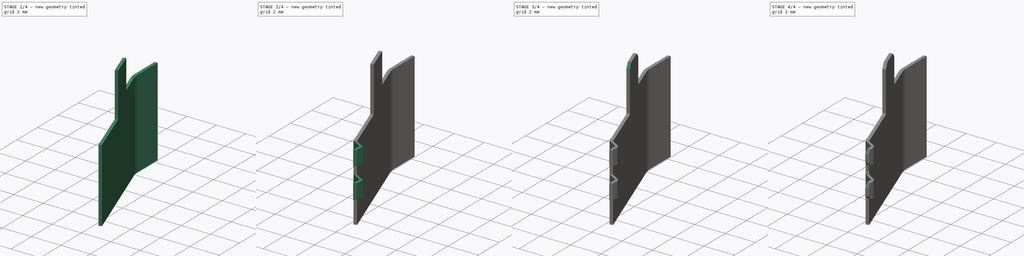
[diagram: build sequence overview — one tinted view per stage of 4, left to right]
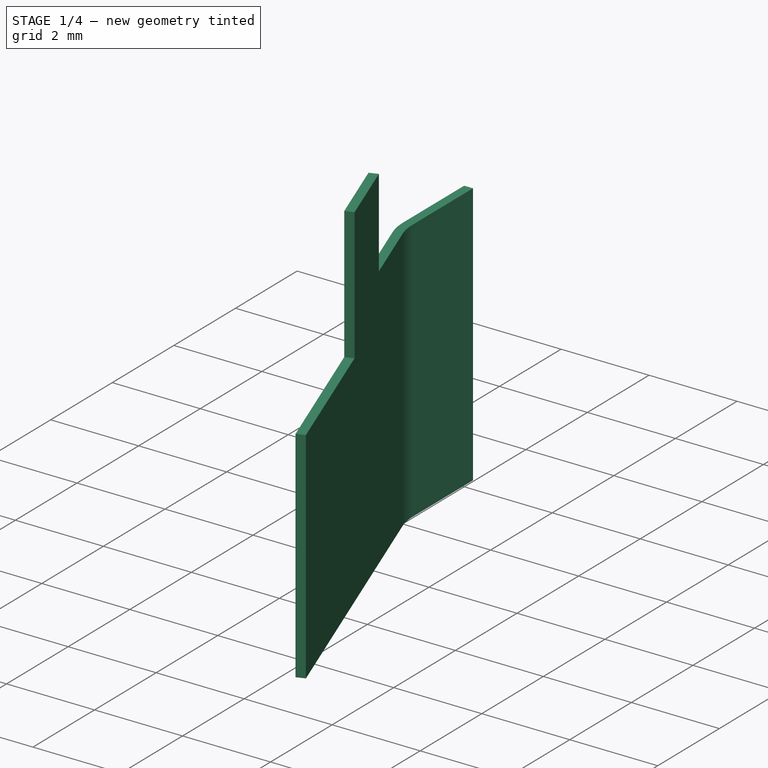
[diagram: stage 1 of 4 — iso view after this stage's code; geometry added in this stage tinted green]
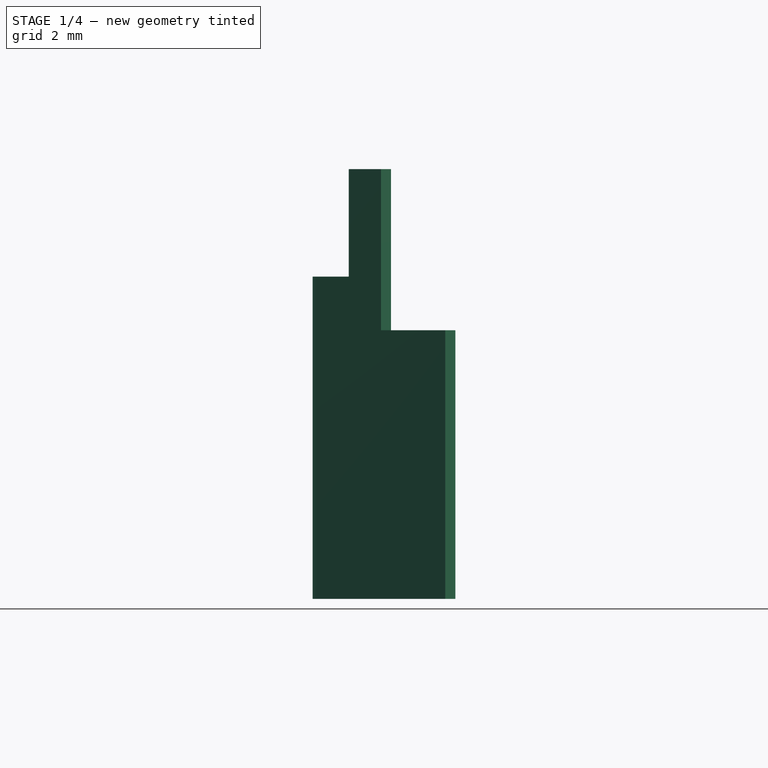
[diagram: stage 1 of 4 — front view after this stage's code; geometry added in this stage tinted green]
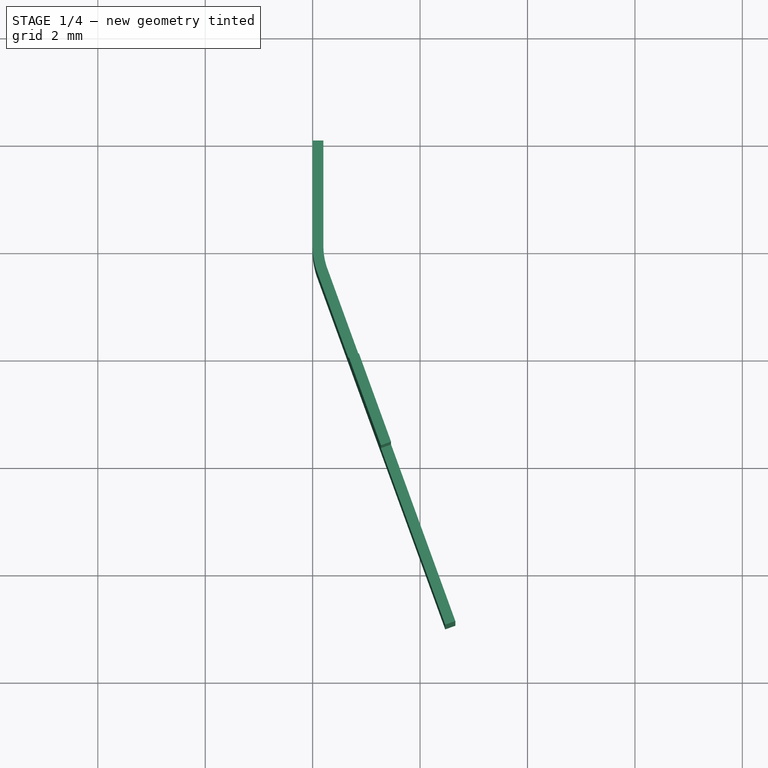
[diagram: stage 1 of 4 — top view after this stage's code; geometry added in this stage tinted green]
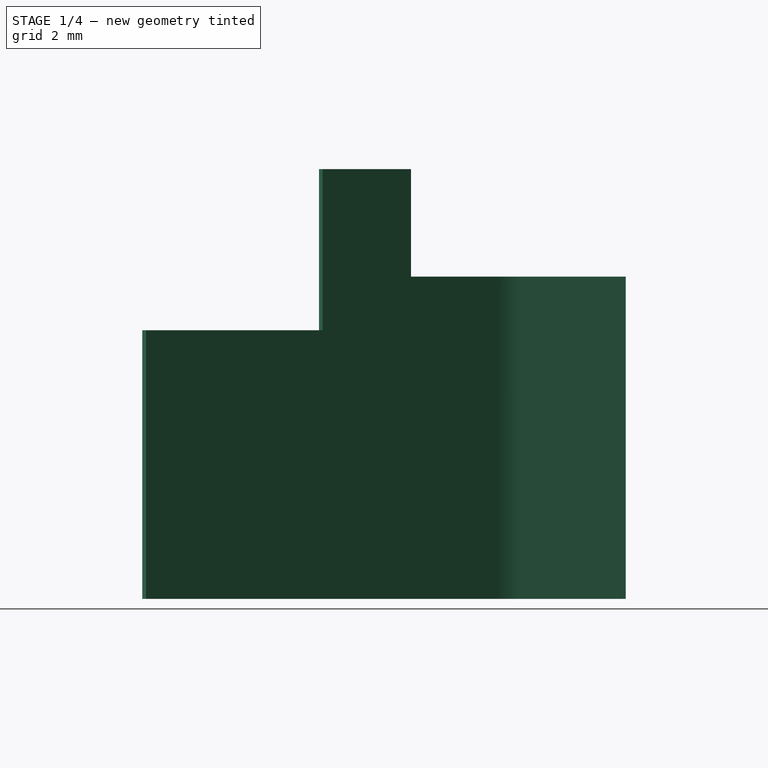
[diagram: stage 1 of 4 — right view after this stage's code; geometry added in this stage tinted green]
FCSTD DOCUMENT  (FreeCAD 0.19.4R1_voidlinux)
Label: battery_contact_minus
License: All rights reserved
LicenseURL: http://en.wikipedia.org/wiki/All_rights_reserved
objects: PartDesign::Fillet×5, Sketcher::SketchObject×4, PartDesign::Pad×4, PartDesign::Pocket×1, PartDesign::LinearPattern×1, PartDesign::Chamfer×1, PartDesign::Body×1, PartDesign::CoordinateSystem×1, App::Part×1
note: 29 computed .brp shape members not serialized (recipe doc carries the construction recipe); baked Part::Feature solids carry a one-line shape summary decoded from their .brp
EXTERNAL_REF file=master_animator.FCStd obj=Variables

FEATURE [Sketcher::SketchObject] Sketch
  FullyConstrained = true
  MapMode = 5
  Support = -> [XY_Plane001]
  sketch-geometry (8):
    g0: LineSegment StartX=0 StartY=0 StartZ=0 EndX=0.2 EndY=0 EndZ=0
    g1: LineSegment StartX=0 StartY=0 StartZ=0 EndX=4.15e-14 EndY=-2 EndZ=0
    g2: LineSegment StartX=0.2 StartY=0 StartZ=0 EndX=0.2 EndY=-2 EndZ=0
    g3: LineSegment StartX=0.0744367 StartY=-2.42215 StartZ=0 EndX=2.46858 EndY=-9 EndZ=0
    g4: LineSegment StartX=0.262375 StartY=-2.35375 StartZ=0 EndX=2.65652 EndY=-8.9316 EndZ=0
    g5: LineSegment StartX=2.46858 StartY=-9 StartZ=0 EndX=2.65652 EndY=-8.9316 EndZ=0
    g6: ArcOfCircle CenterX=1.44942 CenterY=-1.96207 CenterZ=0 NormalX=0 NormalY=0 NormalZ=1 AngleXU=0 Radius=1.44992 StartAngle=3.16776 EndAngle=3.46449
    g7: ArcOfCircle CenterX=1.44942 CenterY=-1.96207 CenterZ=0 NormalX=0 NormalY=0 NormalZ=1 AngleXU=0 Radius=1.25 StartAngle=3.17194 EndAngle=3.46031
  constraints (24):
    c: Coincident(g0,g-1)
    c: PointOnObject(g0,g-1)
    c: Distance(g0) = 0.2
    c: Coincident(g1,g0)
    c: Coincident(g2,g0)
    c: Vertical(g2)
    c: PointOnObject(g1,g-2)
    c: Distance(g1) = 2
    c: Coincident(g5,g3)
    c: Coincident(g5,g4)
    c: Angle(g3,g2) = 2.79253
    c: Perpendicular(g4,g5)
    c: Distance(g5) = 0.2
    c: Distance(g3) = 7
    c: Equal(g4,g3)
    c: Equal(g2,g1)
    c: Parallel(g3,g4)
    c: Coincident(g6,g1)
    c: Coincident(g6,g3)
    c: Coincident(g7,g2)
    c: Coincident(g7,g4)
    c: Coincident(g7,g6)
    c: DistanceY(g3,g1) = 7
    c: Radius(g7) = 1.25
FEATURE [PartDesign::Pad] Pad
  Direction = (1,1,1)
  Length = 6
  Length2 = 100
  Profile = -> Sketch
  Type = 0
FEATURE [Sketcher::SketchObject] Sketch001
  ExternalGeometry = -> [Pad]
  FullyConstrained = true
  MapMode = 5
  Placement = pos=(-0.524797,-0.19101,0) rot=(0.443713,0.633687,0.633687;2.30637rad)
  Support = -> [Pad]
  sketch-geometry (4):
    g0: LineSegment StartX=-9.30154 StartY=6 StartZ=0 EndX=-5.80154 EndY=6 EndZ=0
    g1: LineSegment StartX=-5.80154 StartY=6 StartZ=0 EndX=-5.80154 EndY=5 EndZ=0
    g2: LineSegment StartX=-5.80154 StartY=5 StartZ=0 EndX=-9.30154 EndY=5 EndZ=0
    g3: LineSegment StartX=-9.30154 StartY=5 StartZ=0 EndX=-9.30154 EndY=6 EndZ=0
  constraints (10):
    c: Coincident(g0,g1)
    c: Coincident(g1,g2)
    c: Coincident(g2,g3)
    c: Coincident(g3,g0)
    c: Horizontal(g2)
    c: Vertical(g1)
    c: Vertical(g3)
    c: Coincident(g0,g-4)
    c: Distance(g3) = 1
    c: Symmetric(g-4,g0,g0)
FEATURE [PartDesign::Pocket] Pocket
  BaseFeature = -> Pad
  Length = 5
  Length2 = 100
  Profile = -> Sketch001
  Type = 1
FEATURE [Sketcher::SketchObject] Sketch002
  ExternalGeometry = -> [Pocket]
  FullyConstrained = true
  MapMode = 5
  Placement = pos=(0,0,6) rot=(0,0,1;0rad)
  Support = -> [Pocket]
  sketch-geometry (4):
    g0: LineSegment StartX=1.27151 StartY=-5.71108 StartZ=0 EndX=1.45945 EndY=-5.64267 EndZ=0
    g1: LineSegment StartX=1.45945 StartY=-5.64267 StartZ=0 EndX=0.860911 EndY=-3.99821 EndZ=0
    g2: LineSegment StartX=1.27151 StartY=-5.71108 StartZ=0 EndX=0.672972 EndY=-4.06661 EndZ=0
    g3: LineSegment StartX=0.672972 StartY=-4.06661 StartZ=0 EndX=0.860911 EndY=-3.99821 EndZ=0
  constraints (9):
    c: Coincident(g0,g-5)
    c: Coincident(g0,g-4)
    c: Coincident(g1,g0)
    c: Coincident(g2,g-5)
    c: PointOnObject(g2,g-5)
    c: Equal(g1,g2)
    c: Symmetric(g-4,g0,g1)
    c: Coincident(g3,g2)
    c: Coincident(g3,g1)
FEATURE [PartDesign::Pad] Pad001
  BaseFeature = -> Pocket
  Direction = (1,1,1)
  Length = 2
  Length2 = 100
  Profile = -> Sketch002
  Type = 0
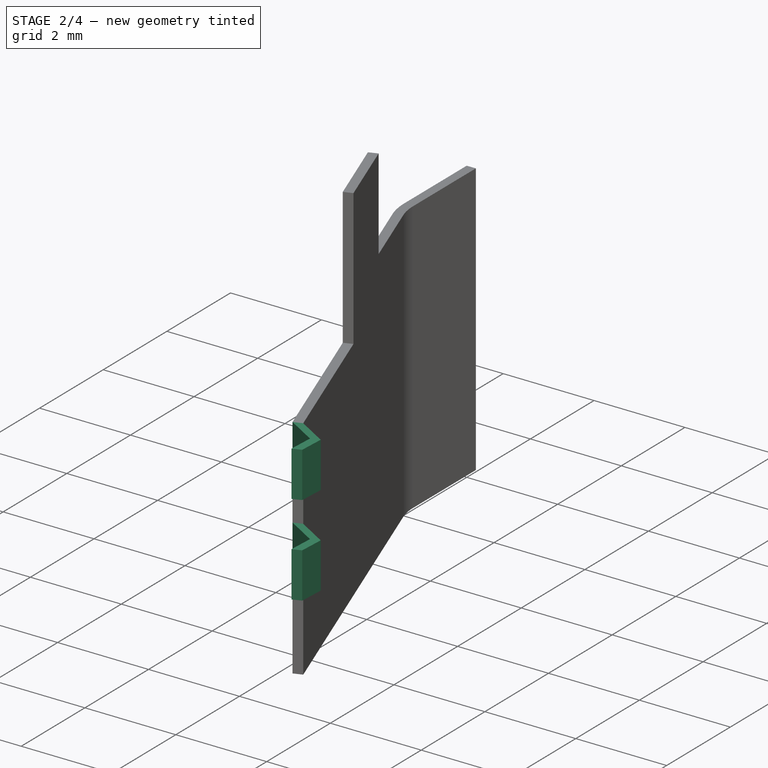
[diagram: stage 2 of 4 — iso view after this stage's code; geometry added in this stage tinted green]
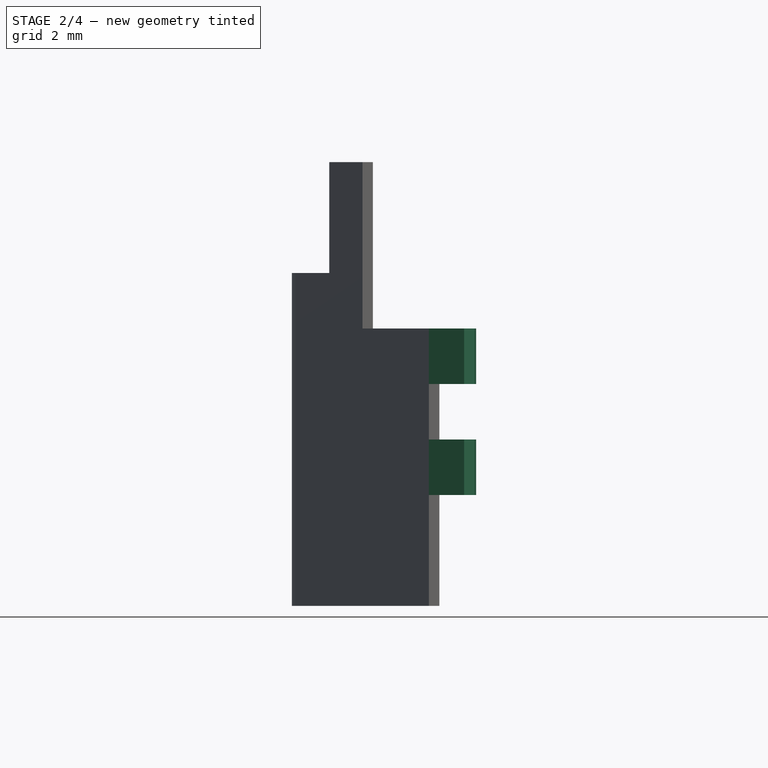
[diagram: stage 2 of 4 — front view after this stage's code; geometry added in this stage tinted green]
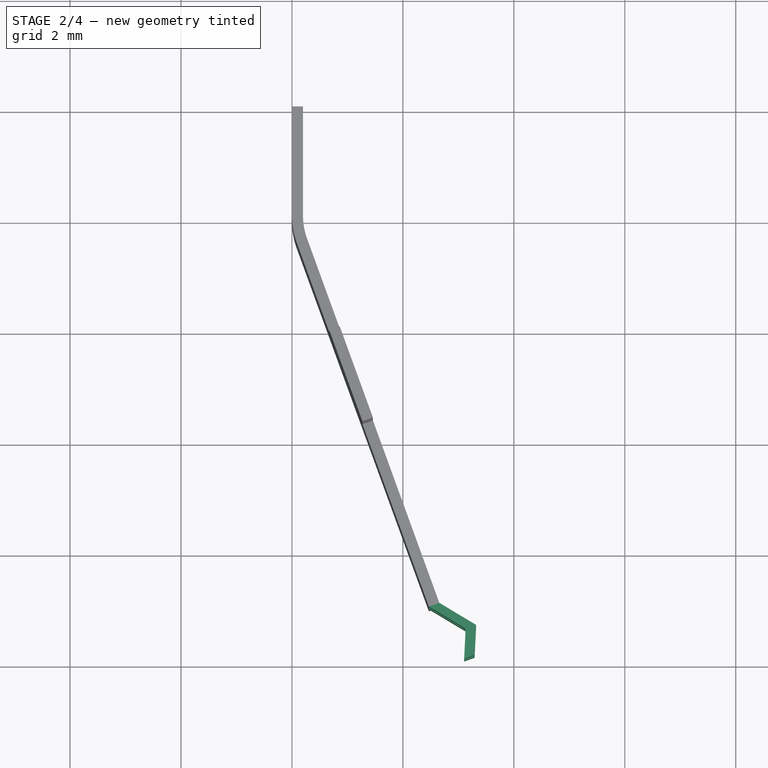
[diagram: stage 2 of 4 — top view after this stage's code; geometry added in this stage tinted green]
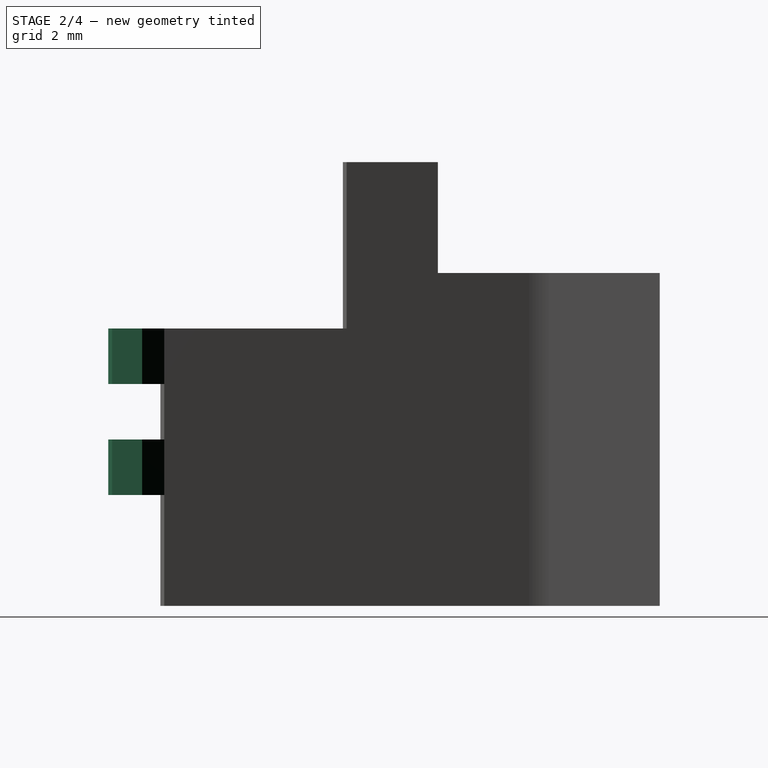
[diagram: stage 2 of 4 — right view after this stage's code; geometry added in this stage tinted green]
FEATURE [Sketcher::SketchObject] Sketch003
  ExternalGeometry = -> [Pad001]
  FullyConstrained = true
  MapMode = 5
  Placement = pos=(3.18131,-8.74059,0) rot=(0.970288,0.171088,0.171088;1.60095rad)
  Support = -> [Pad001]
  sketch-geometry (4):
    g0: LineSegment StartX=-0.758477 StartY=5 StartZ=0 EndX=-0.558477 EndY=5 EndZ=0
    g1: LineSegment StartX=-0.558477 StartY=5 StartZ=0 EndX=-0.558477 EndY=4 EndZ=0
    g2: LineSegment StartX=-0.558477 StartY=4 StartZ=0 EndX=-0.758477 EndY=4 EndZ=0
    g3: LineSegment StartX=-0.758477 StartY=4 StartZ=0 EndX=-0.758477 EndY=5 EndZ=0
  constraints (11):
    c: Coincident(g0,g1)
    c: Coincident(g1,g2)
    c: Coincident(g2,g3)
    c: Coincident(g3,g0)
    c: Horizontal(g0)
    c: Horizontal(g2)
    c: Vertical(g1)
    c: Vertical(g3)
    c: Coincident(g0,g-4)
    c: PointOnObject(g1,g-5)
    c: Distance(g3) = 1
FEATURE [PartDesign::Pad] Pad002
  BaseFeature = -> Pad001
  Direction = (1,-0.6,0)
  Length = 0.6
  Length2 = 100
  Profile = -> Sketch003
  Type = 0
  UseCustomVector = true
FEATURE [PartDesign::Pad] Pad003
  BaseFeature = -> Pad002
  Direction = (-0.05,-1,0)
  Length = 0.5
  Length2 = 100
  Profile = -> Pad002 [Face18]
  Type = 0
  UseCustomVector = true
FEATURE [PartDesign::LinearPattern] LinearPattern
  BaseFeature = -> Pad003
  Direction = -> Z_Axis001
  Length = 2
  Occurrences = 2
  Originals = -> [Pad002,Pad003]
  Reversed = true
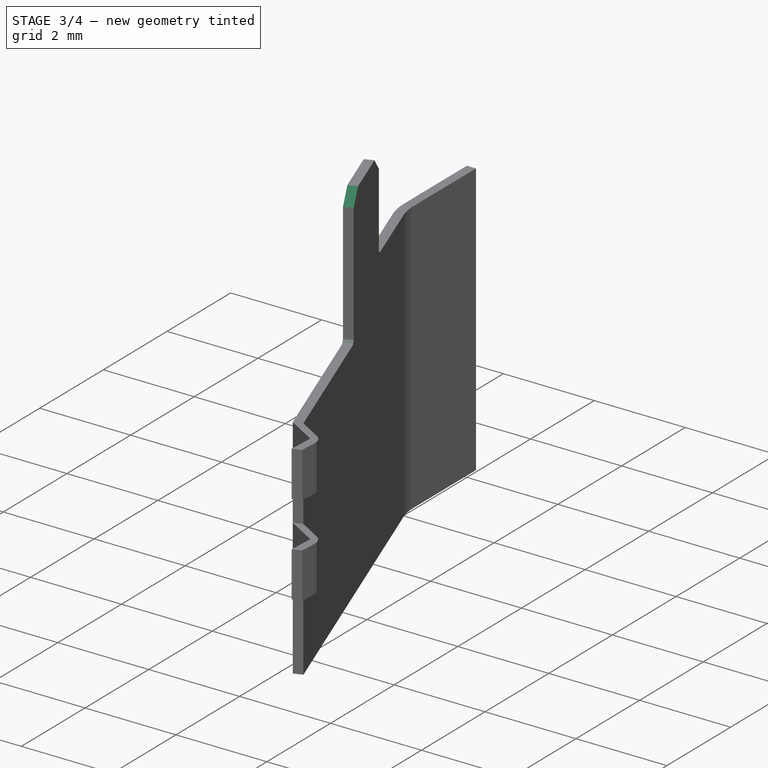
[diagram: stage 3 of 4 — iso view after this stage's code; geometry added in this stage tinted green]
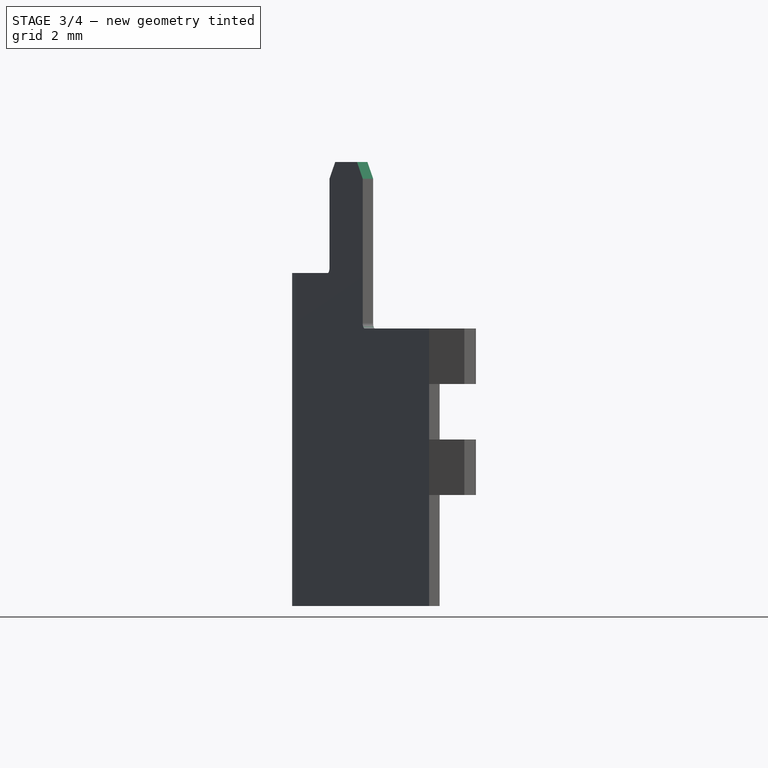
[diagram: stage 3 of 4 — front view after this stage's code; geometry added in this stage tinted green]
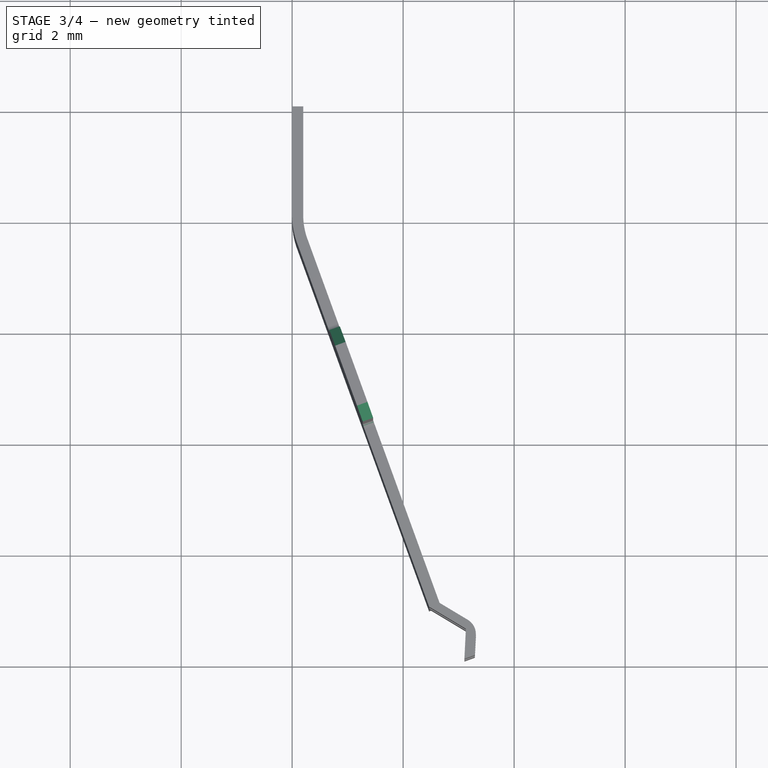
[diagram: stage 3 of 4 — top view after this stage's code; geometry added in this stage tinted green]
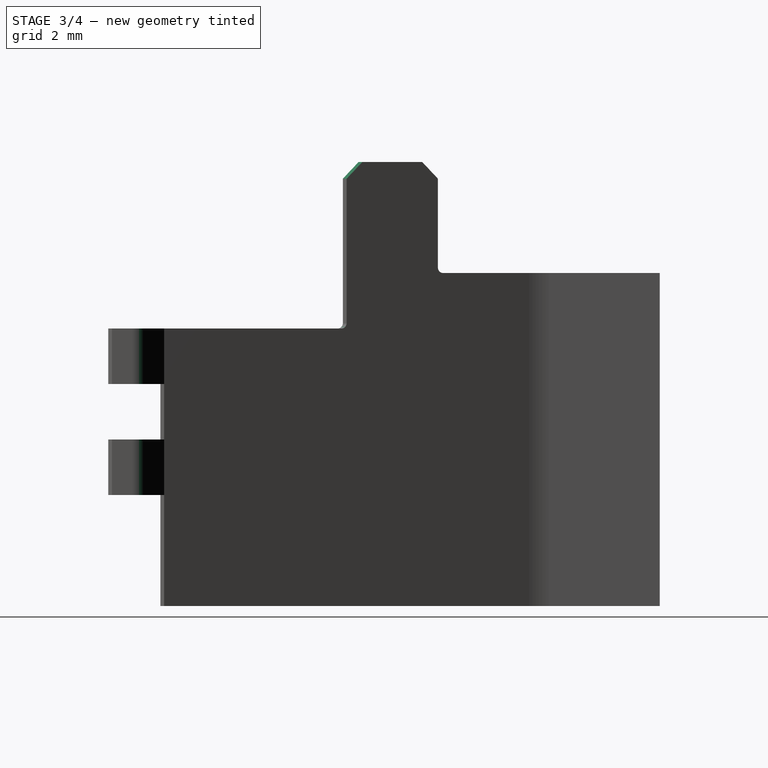
[diagram: stage 3 of 4 — right view after this stage's code; geometry added in this stage tinted green]
FEATURE [PartDesign::Fillet] Fillet
  Base = -> LinearPattern [Edge41,Edge22]
  BaseFeature = -> LinearPattern
  Radius = 0.1
  SupportTransform = false
FEATURE [PartDesign::Chamfer] Chamfer
  Angle = 45
  Base = -> Fillet [Edge63,Edge67]
  BaseFeature = -> Fillet
  ChamferType = 0
  FlipDirection = false
  Size = 0.3
  Size2 = 1
  SupportTransform = false
FEATURE [PartDesign::Fillet] Fillet001
  Base = -> Chamfer [Edge85,Edge86]
  BaseFeature = -> Chamfer
  Radius = 0.3
  SupportTransform = false
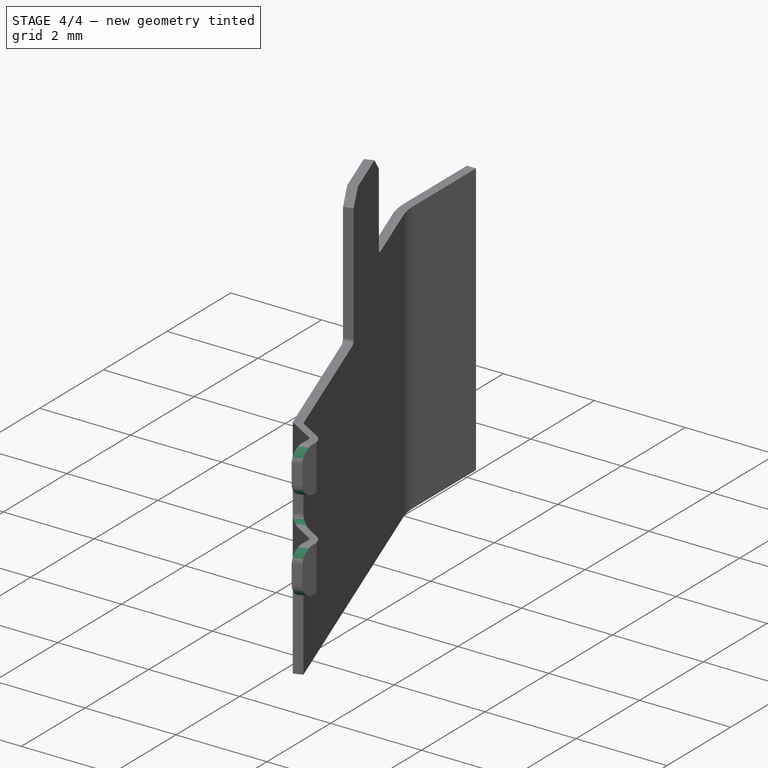
[diagram: stage 4 of 4 — iso view after this stage's code; geometry added in this stage tinted green]
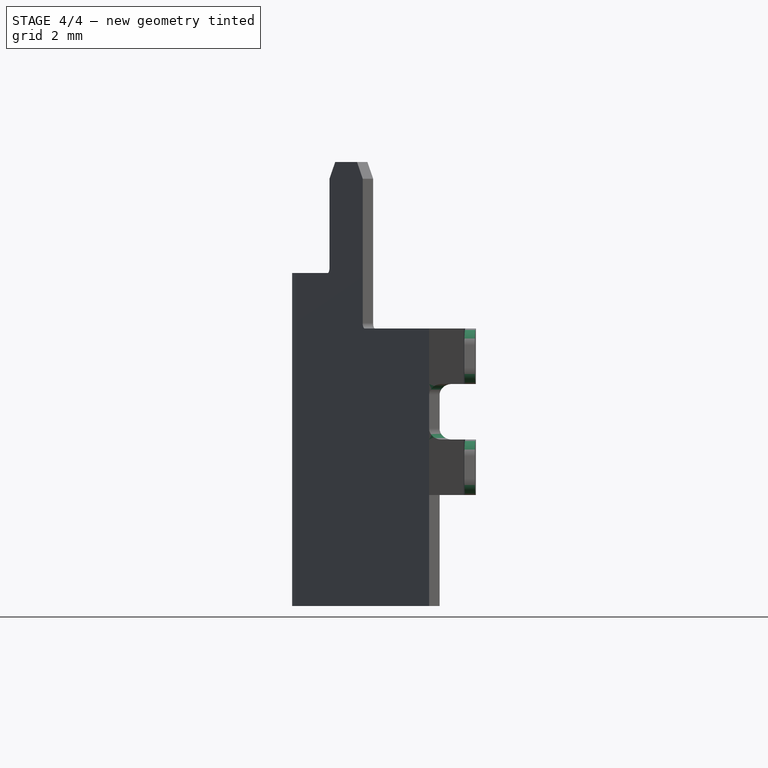
[diagram: stage 4 of 4 — front view after this stage's code; geometry added in this stage tinted green]
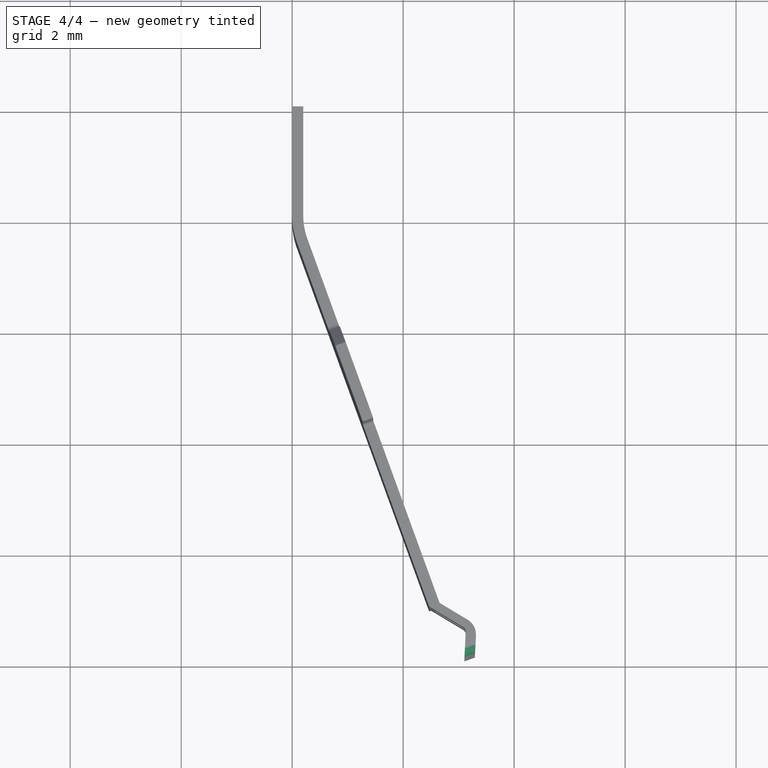
[diagram: stage 4 of 4 — top view after this stage's code; geometry added in this stage tinted green]
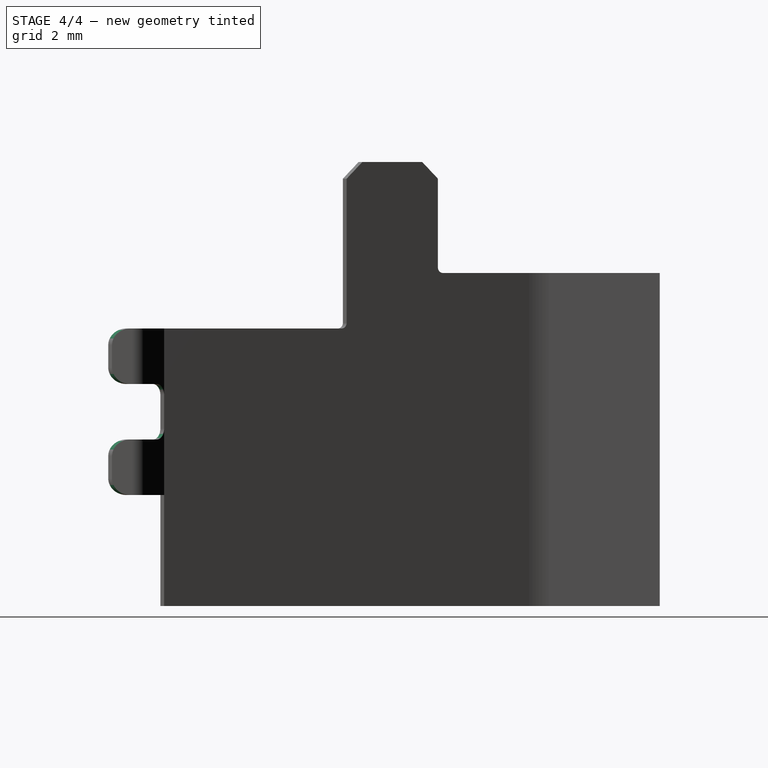
[diagram: stage 4 of 4 — right view after this stage's code; geometry added in this stage tinted green]
FEATURE [PartDesign::Fillet] Fillet002
  Base = -> Fillet001 [Edge21,Edge83]
  BaseFeature = -> Fillet001
  Radius = 0.1
  SupportTransform = false
FEATURE [PartDesign::Fillet] Fillet003
  Base = -> Fillet002 [Edge33,Edge55]
  BaseFeature = -> Fillet002
  Radius = 0.2
  SupportTransform = false
FEATURE [PartDesign::Fillet] Fillet004
  Base = -> Fillet003 [Edge48,Edge40,Edge119,Edge124]
  BaseFeature = -> Fillet003
  Radius = 0.3
  SupportTransform = false
FEATURE [PartDesign::Body] Body
  Group = -> [Sketch,Pad,Sketch001,Pocket,Sketch002,Pad001,Sketch003,Pad002,Pad003,LinearPattern,Fillet,Chamfer,Fillet001,Fillet002,Fillet003,Fillet004]
  Origin = -> Origin001
  Tip = -> Fillet004
FEATURE [PartDesign::CoordinateSystem] LCS_tangent_to_container
  AttacherType = Attacher::AttachEngine3D
  MapMode = 45
  Placement = pos=(2.08e-14,-1,3) rot=(0.57735,0.57735,0.57735;2.0944rad)
  Support = -> [Fillet004]
  expr: .AttachmentOffset.Base.y = -master_animator#Variables.explode * 3
FEATURE [App::Part] Part  label="battery_contact_minus"
  Group = -> [Body,LCS_tangent_to_container]
  Origin = -> Origin
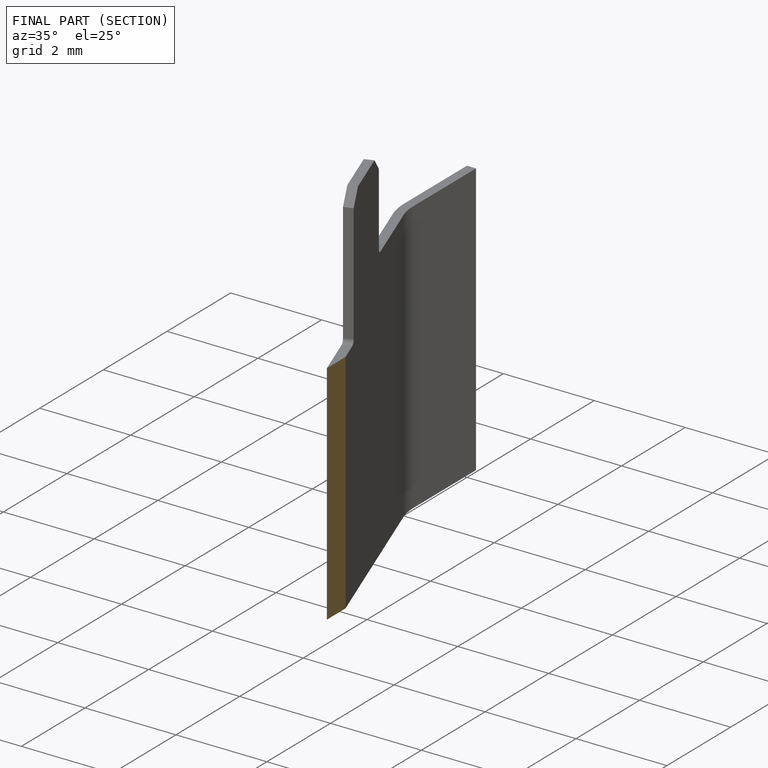
[diagram: finished part — half-section view (interior)]
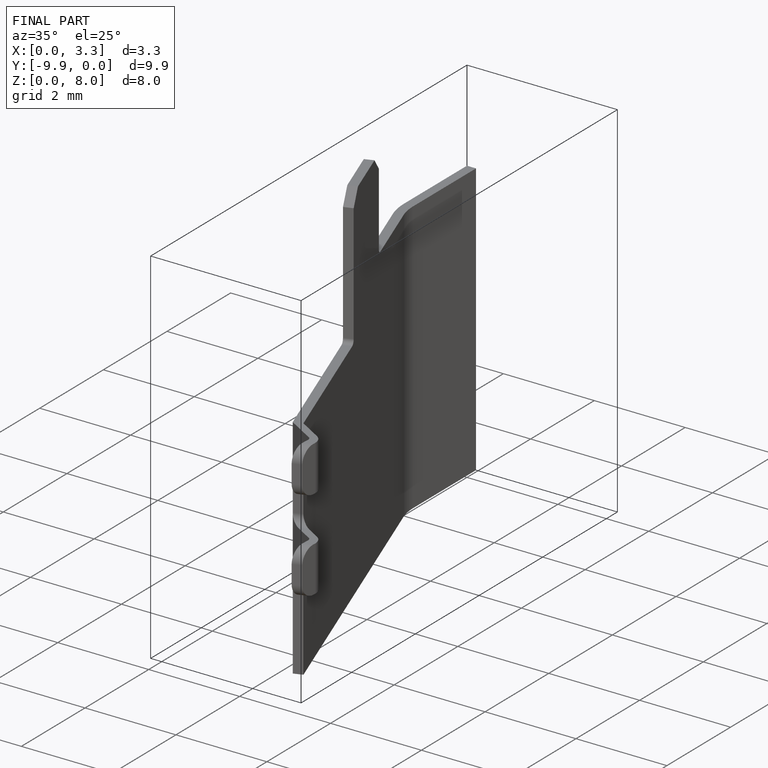
[diagram: finished part — iso view with bounding-box wireframe]
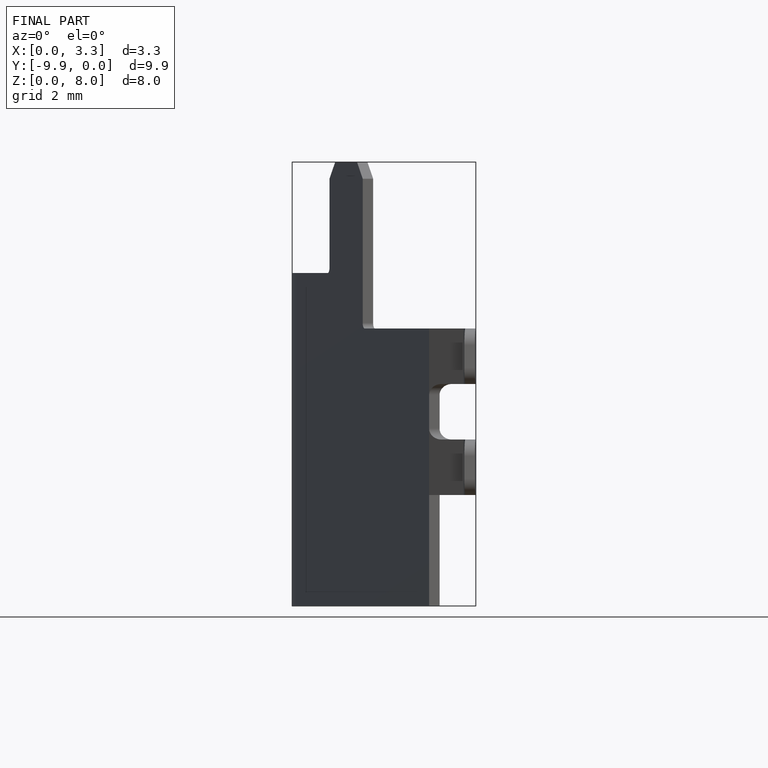
[diagram: finished part — front view with bounding-box wireframe]
